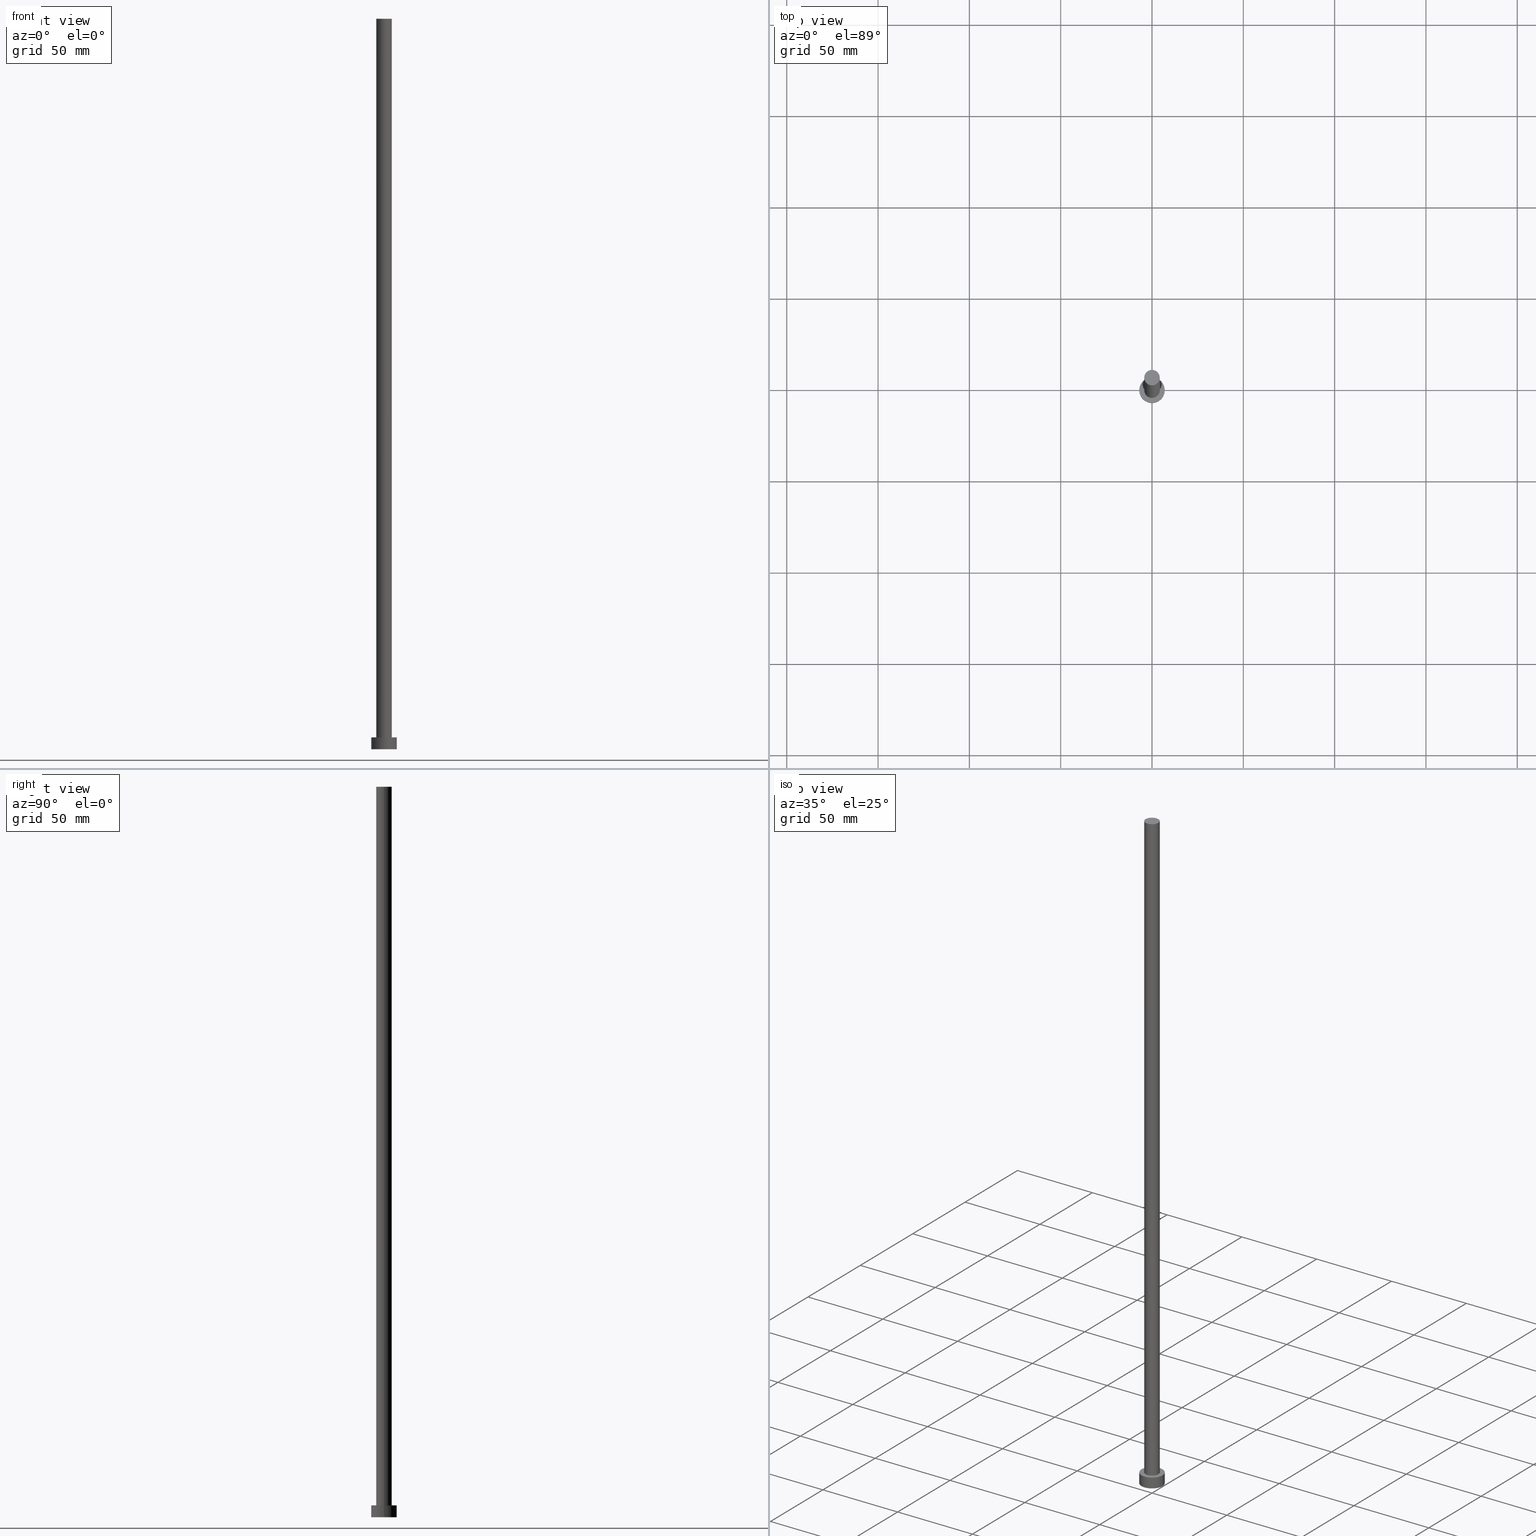
[diagram: canonical four-view strip — front | top / right | iso, engineering-drawing reading convention]
A machine part, canonical four-view strip (front | top / right | iso — engineering-drawing reading convention). The complete STEP part file that produces these views, byte-faithful:
ISO-10303-21;
HEADER;
FILE_DESCRIPTION (( 'STEP AP203' ),
    '1' );
FILE_NAME ('a1f8.STEP',
    '2023-02-13T13:47:49',
    ( '' ),
    ( '' ),
    'SwSTEP 2.0',
    'SolidWorks 2019',
    '' );
FILE_SCHEMA (( 'CONFIG_CONTROL_DESIGN' ));
ENDSEC;

DATA;
#1 = VERTEX_POINT ( 'NONE', #17 ) ;
#2 = ORIENTED_EDGE ( 'NONE', *, *, #110, .F. ) ;
#3 = APPROVAL ( #225, 'NEUR�EN�' ) ;
#4 = FACE_OUTER_BOUND ( 'NONE', #40, .T. ) ;
#5 = ORIENTED_EDGE ( 'NONE', *, *, #32, .F. ) ;
#6 = VERTEX_POINT ( 'NONE', #106 ) ;
#7 = EDGE_CURVE ( 'NONE', #189, #197, #199, .T. ) ;
#8 = CARTESIAN_POINT ( 'NONE',  ( 4.250000000000000000, 5.204748896376250699E-16, 400.0000000000000000 ) ) ;
#9 = CC_DESIGN_APPROVAL ( #57, ( #108 ) ) ;
#10 = PLANE ( 'NONE',  #107 ) ;
#11 = CARTESIAN_POINT ( 'NONE',  ( 0.000000000000000000, 0.000000000000000000, 6.500000000000000000 ) ) ;
#12 = PERSON ( 'NEUR�EN�', 'NEUR�EN�', 'NEUR�EN�', ('NEUR�EN�'), ('NEUR�EN�'), ('NEUR�EN�') ) ;
#13 = EDGE_CURVE ( 'NONE', #197, #189, #78, .T. ) ;
#14 = PRODUCT_DEFINITION_SHAPE ( 'NONE', 'NONE',  #108 ) ;
#15 = ADVANCED_FACE ( 'NONE', ( #119 ), #223, .T. ) ;
#16 = EDGE_CURVE ( 'NONE', #115, #6, #179, .T. ) ;
#17 = CARTESIAN_POINT ( 'NONE',  ( 4.250000000000000000, 5.204748896376250699E-16, 400.0000000000000000 ) ) ;
#18 = MECHANICAL_CONTEXT ( 'NONE', #61, 'mechanical' ) ;
#19 = MANIFOLD_SOLID_BREP ( 'P�idat vysunut�m3', #83 ) ;
#20 = PERSON_AND_ORGANIZATION ( #12, #81 ) ;
#21 = FACE_BOUND ( 'NONE', #143, .T. ) ;
#22 = PERSON_AND_ORGANIZATION_ROLE ( 'creator' ) ;
#23 = EDGE_LOOP ( 'NONE', ( #117, #188 ) ) ;
#24 = APPROVAL_DATE_TIME ( #219, #57 ) ;
#25 = AXIS2_PLACEMENT_3D ( 'NONE', #254, #84, #158 ) ;
#26 = PERSON_AND_ORGANIZATION_ROLE ( 'creator' ) ;
#27 = CALENDAR_DATE ( 2023, 13, 2 ) ;
#28 = CARTESIAN_POINT ( 'NONE',  ( 4.250000000000000000, 5.204748896376250699E-16, 6.500000000000000000 ) ) ;
#29 = LINE ( 'NONE', #8, #232 ) ;
#30 = CALENDAR_DATE ( 2023, 13, 2 ) ;
#31 = AXIS2_PLACEMENT_3D ( 'NONE', #93, #50, #103 ) ;
#32 = EDGE_CURVE ( 'NONE', #240, #236, #211, .T. ) ;
#33 = DATE_AND_TIME ( #252, #97 ) ;
#34 = EDGE_LOOP ( 'NONE', ( #92, #178 ) ) ;
#35 = CARTESIAN_POINT ( 'NONE',  ( 7.000000000000000000, 8.572527594031471218E-16, 6.500000000000000000 ) ) ;
#36 = LOCAL_TIME ( 14, 47, 49.00000000000000000, #221 ) ;
#37 = ORIENTED_EDGE ( 'NONE', *, *, #13, .T. ) ;
#38 = AXIS2_PLACEMENT_3D ( 'NONE', #227, #42, #154 ) ;
#39 = DIRECTION ( 'NONE',  ( 0.000000000000000000, 0.000000000000000000, 1.000000000000000000 ) ) ;
#40 = EDGE_LOOP ( 'NONE', ( #247, #138, #212, #59 ) ) ;
#41 = PRODUCT ( 'a1f8', 'a1f8', '', ( #18 ) ) ;
#42 = DIRECTION ( 'NONE',  ( -0.000000000000000000, -0.000000000000000000, -1.000000000000000000 ) ) ;
#43 = DATE_AND_TIME ( #30, #155 ) ;
#44 = EDGE_CURVE ( 'NONE', #1, #115, #29, .T. ) ;
#45 = ORIENTED_EDGE ( 'NONE', *, *, #13, .F. ) ;
#46 = DIRECTION ( 'NONE',  ( -1.000000000000000000, 0.000000000000000000, 0.000000000000000000 ) ) ;
#47 = DATE_TIME_ROLE ( 'classification_date' ) ;
#48 = DIRECTION ( 'NONE',  ( -0.000000000000000000, -0.000000000000000000, -1.000000000000000000 ) ) ;
#49 = AXIS2_PLACEMENT_3D ( 'NONE', #193, #209, #172 ) ;
#50 = DIRECTION ( 'NONE',  ( -0.000000000000000000, -0.000000000000000000, -1.000000000000000000 ) ) ;
#51 = DIRECTION ( 'NONE',  ( 0.000000000000000000, 0.000000000000000000, 1.000000000000000000 ) ) ;
#52 = DATE_TIME_ROLE ( 'creation_date' ) ;
#53 = DIRECTION ( 'NONE',  ( 0.000000000000000000, 0.000000000000000000, 1.000000000000000000 ) ) ;
#54 = AXIS2_PLACEMENT_3D ( 'NONE', #183, #39, #214 ) ;
#55 = COORDINATED_UNIVERSAL_TIME_OFFSET ( 1, 0, .AHEAD. ) ;
#56 =( GEOMETRIC_REPRESENTATION_CONTEXT ( 3 ) GLOBAL_UNCERTAINTY_ASSIGNED_CONTEXT ( ( #105 ) ) GLOBAL_UNIT_ASSIGNED_CONTEXT ( ( #144, #141, #239 ) ) REPRESENTATION_CONTEXT ( 'NONE', 'WORKASPACE' ) );
#57 = APPROVAL ( #229, 'NEUR�EN�' ) ;
#58 = DESIGN_CONTEXT ( 'detailed design', #75, 'design' ) ;
#59 = ORIENTED_EDGE ( 'NONE', *, *, #131, .T. ) ;
#60 = PERSON_AND_ORGANIZATION_ROLE ( 'design_owner' ) ;
#61 = APPLICATION_CONTEXT ( 'configuration controlled 3d designs of mechanical parts and assemblies' ) ;
#62 = EDGE_LOOP ( 'NONE', ( #88, #164, #167, #68 ) ) ;
#63 = AXIS2_PLACEMENT_3D ( 'NONE', #246, #206, #191 ) ;
#64 = LINE ( 'NONE', #146, #194 ) ;
#65 = DATE_AND_TIME ( #161, #36 ) ;
#66 = COORDINATED_UNIVERSAL_TIME_OFFSET ( 1, 0, .AHEAD. ) ;
#67 = DIRECTION ( 'NONE',  ( -0.000000000000000000, -0.000000000000000000, -1.000000000000000000 ) ) ;
#68 = ORIENTED_EDGE ( 'NONE', *, *, #198, .F. ) ;
#69 = APPROVAL_PERSON_ORGANIZATION ( #129, #177, #80 ) ;
#70 = DIRECTION ( 'NONE',  ( -0.000000000000000000, -0.000000000000000000, -1.000000000000000000 ) ) ;
#71 = CARTESIAN_POINT ( 'NONE',  ( 0.000000000000000000, 0.000000000000000000, 400.0000000000000000 ) ) ;
#72 = FACE_OUTER_BOUND ( 'NONE', #62, .T. ) ;
#73 = DIRECTION ( 'NONE',  ( 1.000000000000000000, 0.000000000000000000, -0.000000000000000000 ) ) ;
#74 = DIRECTION ( 'NONE',  ( -0.000000000000000000, -0.000000000000000000, -1.000000000000000000 ) ) ;
#75 = APPLICATION_CONTEXT ( 'configuration controlled 3d designs of mechanical parts and assemblies' ) ;
#76 = CC_DESIGN_SECURITY_CLASSIFICATION ( #248, ( #114 ) ) ;
#77 = CARTESIAN_POINT ( 'NONE',  ( 7.000000000000000000, 8.572527594031471218E-16, 6.500000000000000000 ) ) ;
#78 = CIRCLE ( 'NONE', #234, 7.000000000000000000 ) ;
#79 = APPROVAL_DATE_TIME ( #33, #177 ) ;
#80 = APPROVAL_ROLE ( '' ) ;
#81 = ORGANIZATION ( 'NEUR�EN�', 'NEUR�EN�', '' ) ;
#82 = AXIS2_PLACEMENT_3D ( 'NONE', #11, #173, #46 ) ;
#83 = CLOSED_SHELL ( 'NONE', ( #142, #15, #147, #196, #87, #216, #99 ) ) ;
#84 = DIRECTION ( 'NONE',  ( 0.000000000000000000, 0.000000000000000000, 1.000000000000000000 ) ) ;
#85 = CC_DESIGN_PERSON_AND_ORGANIZATION_ASSIGNMENT ( #165, #113, ( #248 ) ) ;
#86 = DIRECTION ( 'NONE',  ( 1.000000000000000000, 0.000000000000000000, 0.000000000000000000 ) ) ;
#87 = ADVANCED_FACE ( 'NONE', ( #134 ), #121, .F. ) ;
#88 = ORIENTED_EDGE ( 'NONE', *, *, #237, .F. ) ;
#89 = PRODUCT_RELATED_PRODUCT_CATEGORY ( 'detail', '', ( #41 ) ) ;
#90 = CARTESIAN_POINT ( 'NONE',  ( 0.000000000000000000, 0.000000000000000000, 6.500000000000000000 ) ) ;
#91 = CALENDAR_DATE ( 2023, 13, 2 ) ;
#92 = ORIENTED_EDGE ( 'NONE', *, *, #32, .T. ) ;
#93 = CARTESIAN_POINT ( 'NONE',  ( 0.000000000000000000, 0.000000000000000000, 400.0000000000000000 ) ) ;
#94 = PERSON_AND_ORGANIZATION ( #12, #81 ) ;
#95 = ORIENTED_EDGE ( 'NONE', *, *, #156, .F. ) ;
#96 = DIRECTION ( 'NONE',  ( 1.000000000000000000, 0.000000000000000000, 0.000000000000000000 ) ) ;
#97 = LOCAL_TIME ( 14, 47, 49.00000000000000000, #195 ) ;
#98 = APPROVAL_ROLE ( '' ) ;
#99 = ADVANCED_FACE ( 'NONE', ( #249 ), #10, .T. ) ;
#100 = CARTESIAN_POINT ( 'NONE',  ( 0.000000000000000000, 0.000000000000000000, 6.500000000000000000 ) ) ;
#101 = CARTESIAN_POINT ( 'NONE',  ( -7.000000000000000000, 0.000000000000000000, 6.500000000000000000 ) ) ;
#102 = SECURITY_CLASSIFICATION_LEVEL ( 'unclassified' ) ;
#103 = DIRECTION ( 'NONE',  ( -1.000000000000000000, 0.000000000000000000, 0.000000000000000000 ) ) ;
#104 = CC_DESIGN_PERSON_AND_ORGANIZATION_ASSIGNMENT ( #20, #60, ( #41 ) ) ;
#105 = UNCERTAINTY_MEASURE_WITH_UNIT (LENGTH_MEASURE( 1.000000000000000082E-05 ), #144, 'distance_accuracy_value', 'NONE');
#106 = CARTESIAN_POINT ( 'NONE',  ( -4.250000000000000000, 0.000000000000000000, 6.500000000000000000 ) ) ;
#107 = AXIS2_PLACEMENT_3D ( 'NONE', #166, #53, #73 ) ;
#108 = PRODUCT_DEFINITION ( 'NEZN�M�', '', #114, #58 ) ;
#109 = ORIENTED_EDGE ( 'NONE', *, *, #255, .T. ) ;
#110 = EDGE_CURVE ( 'NONE', #236, #240, #238, .T. ) ;
#111 = CC_DESIGN_APPROVAL ( #177, ( #248 ) ) ;
#112 = AXIS2_PLACEMENT_3D ( 'NONE', #100, #67, #204 ) ;
#113 = PERSON_AND_ORGANIZATION_ROLE ( 'classification_officer' ) ;
#114 = PRODUCT_DEFINITION_FORMATION_WITH_SPECIFIED_SOURCE ( 'LIBOVOLN�', '', #41, .NOT_KNOWN. ) ;
#115 = VERTEX_POINT ( 'NONE', #28 ) ;
#116 = ORIENTED_EDGE ( 'NONE', *, *, #7, .F. ) ;
#117 = ORIENTED_EDGE ( 'NONE', *, *, #120, .T. ) ;
#118 = COORDINATED_UNIVERSAL_TIME_OFFSET ( 1, 0, .AHEAD. ) ;
#119 = FACE_OUTER_BOUND ( 'NONE', #185, .T. ) ;
#120 = EDGE_CURVE ( 'NONE', #224, #1, #242, .T. ) ;
#121 = PLANE ( 'NONE',  #49 ) ;
#122 = LINE ( 'NONE', #101, #145 ) ;
#123 = ORIENTED_EDGE ( 'NONE', *, *, #7, .T. ) ;
#124 = DIRECTION ( 'NONE',  ( -0.000000000000000000, -0.000000000000000000, -1.000000000000000000 ) ) ;
#125 = APPLICATION_PROTOCOL_DEFINITION ( 'international standard', 'config_control_design', 1994, #75 ) ;
#126 = CYLINDRICAL_SURFACE ( 'NONE', #82, 7.000000000000000000 ) ;
#127 = CC_DESIGN_APPROVAL ( #3, ( #114 ) ) ;
#128 = CARTESIAN_POINT ( 'NONE',  ( 7.000000000000000000, 8.572527594031471218E-16, 0.000000000000000000 ) ) ;
#129 = PERSON_AND_ORGANIZATION ( #12, #81 ) ;
#130 = DIRECTION ( 'NONE',  ( 1.000000000000000000, 0.000000000000000000, 0.000000000000000000 ) ) ;
#131 = EDGE_CURVE ( 'NONE', #6, #115, #215, .T. ) ;
#132 = DIRECTION ( 'NONE',  ( 1.000000000000000000, 0.000000000000000000, 0.000000000000000000 ) ) ;
#133 = ADVANCED_BREP_SHAPE_REPRESENTATION ( 'a1f8', ( #19, #54 ), #56 ) ;
#134 = FACE_OUTER_BOUND ( 'NONE', #235, .T. ) ;
#135 = CC_DESIGN_PERSON_AND_ORGANIZATION_ASSIGNMENT ( #94, #22, ( #114 ) ) ;
#136 = AXIS2_PLACEMENT_3D ( 'NONE', #71, #153, #226 ) ;
#137 = SHAPE_DEFINITION_REPRESENTATION ( #14, #133 ) ;
#138 = ORIENTED_EDGE ( 'NONE', *, *, #120, .F. ) ;
#139 = CARTESIAN_POINT ( 'NONE',  ( 0.000000000000000000, 0.000000000000000000, 0.000000000000000000 ) ) ;
#140 = LINE ( 'NONE', #35, #243 ) ;
#141 =( NAMED_UNIT ( * ) PLANE_ANGLE_UNIT ( ) SI_UNIT ( $, .RADIAN. ) );
#142 = ADVANCED_FACE ( 'NONE', ( #72 ), #148, .T. ) ;
#143 = EDGE_LOOP ( 'NONE', ( #217, #245 ) ) ;
#144 =( LENGTH_UNIT ( ) NAMED_UNIT ( * ) SI_UNIT ( .MILLI., .METRE. ) );
#145 = VECTOR ( 'NONE', #74, 1000.000000000000000 ) ;
#146 = CARTESIAN_POINT ( 'NONE',  ( -4.250000000000000000, 0.000000000000000000, 400.0000000000000000 ) ) ;
#147 = ADVANCED_FACE ( 'NONE', ( #207 ), #126, .T. ) ;
#148 = CYLINDRICAL_SURFACE ( 'NONE', #38, 4.250000000000000000 ) ;
#149 = PERSON_AND_ORGANIZATION_ROLE ( 'design_supplier' ) ;
#150 = CARTESIAN_POINT ( 'NONE',  ( 0.000000000000000000, 0.000000000000000000, 6.500000000000000000 ) ) ;
#151 = CYLINDRICAL_SURFACE ( 'NONE', #31, 4.250000000000000000 ) ;
#152 = PERSON_AND_ORGANIZATION ( #12, #81 ) ;
#153 = DIRECTION ( 'NONE',  ( 0.000000000000000000, 0.000000000000000000, 1.000000000000000000 ) ) ;
#154 = DIRECTION ( 'NONE',  ( -1.000000000000000000, 0.000000000000000000, 0.000000000000000000 ) ) ;
#155 = LOCAL_TIME ( 14, 47, 49.00000000000000000, #55 ) ;
#156 = EDGE_CURVE ( 'NONE', #240, #189, #122, .T. ) ;
#157 = APPROVAL_PERSON_ORGANIZATION ( #192, #3, #98 ) ;
#158 = DIRECTION ( 'NONE',  ( 1.000000000000000000, 0.000000000000000000, 0.000000000000000000 ) ) ;
#159 = APPLICATION_PROTOCOL_DEFINITION ( 'international standard', 'config_control_design', 1994, #61 ) ;
#160 = CARTESIAN_POINT ( 'NONE',  ( 0.000000000000000000, 0.000000000000000000, 6.500000000000000000 ) ) ;
#161 = CALENDAR_DATE ( 2023, 13, 2 ) ;
#162 = AXIS2_PLACEMENT_3D ( 'NONE', #90, #190, #168 ) ;
#163 = CIRCLE ( 'NONE', #253, 4.250000000000000000 ) ;
#164 = ORIENTED_EDGE ( 'NONE', *, *, #44, .T. ) ;
#165 = PERSON_AND_ORGANIZATION ( #12, #81 ) ;
#166 = CARTESIAN_POINT ( 'NONE',  ( 0.000000000000000000, 0.000000000000000000, 400.0000000000000000 ) ) ;
#167 = ORIENTED_EDGE ( 'NONE', *, *, #16, .T. ) ;
#168 = DIRECTION ( 'NONE',  ( 1.000000000000000000, 0.000000000000000000, 0.000000000000000000 ) ) ;
#169 = LOCAL_TIME ( 14, 47, 49.00000000000000000, #118 ) ;
#170 = CARTESIAN_POINT ( 'NONE',  ( 0.000000000000000000, 0.000000000000000000, 6.500000000000000000 ) ) ;
#171 = APPROVAL_DATE_TIME ( #187, #3 ) ;
#172 = DIRECTION ( 'NONE',  ( 1.000000000000000000, 0.000000000000000000, -0.000000000000000000 ) ) ;
#173 = DIRECTION ( 'NONE',  ( -0.000000000000000000, -0.000000000000000000, -1.000000000000000000 ) ) ;
#174 = CARTESIAN_POINT ( 'NONE',  ( -4.250000000000000000, 0.000000000000000000, 400.0000000000000000 ) ) ;
#175 = CC_DESIGN_PERSON_AND_ORGANIZATION_ASSIGNMENT ( #228, #149, ( #114 ) ) ;
#176 = CARTESIAN_POINT ( 'NONE',  ( 0.000000000000000000, 0.000000000000000000, 400.0000000000000000 ) ) ;
#177 = APPROVAL ( #202, 'NEUR�EN�' ) ;
#178 = ORIENTED_EDGE ( 'NONE', *, *, #110, .T. ) ;
#179 = CIRCLE ( 'NONE', #63, 4.250000000000000000 ) ;
#180 = CARTESIAN_POINT ( 'NONE',  ( -7.000000000000000000, 0.000000000000000000, 6.500000000000000000 ) ) ;
#181 = ORIENTED_EDGE ( 'NONE', *, *, #156, .T. ) ;
#182 = DIRECTION ( 'NONE',  ( 0.000000000000000000, 0.000000000000000000, 1.000000000000000000 ) ) ;
#183 = CARTESIAN_POINT ( 'NONE',  ( 0.000000000000000000, 0.000000000000000000, 0.000000000000000000 ) ) ;
#184 = PLANE ( 'NONE',  #233 ) ;
#185 = EDGE_LOOP ( 'NONE', ( #2, #109, #37, #95 ) ) ;
#186 = DIRECTION ( 'NONE',  ( 0.000000000000000000, 0.000000000000000000, 1.000000000000000000 ) ) ;
#187 = DATE_AND_TIME ( #91, #169 ) ;
#188 = ORIENTED_EDGE ( 'NONE', *, *, #237, .T. ) ;
#189 = VERTEX_POINT ( 'NONE', #231 ) ;
#190 = DIRECTION ( 'NONE',  ( 0.000000000000000000, 0.000000000000000000, 1.000000000000000000 ) ) ;
#191 = DIRECTION ( 'NONE',  ( 1.000000000000000000, 0.000000000000000000, 0.000000000000000000 ) ) ;
#192 = PERSON_AND_ORGANIZATION ( #12, #81 ) ;
#193 = CARTESIAN_POINT ( 'NONE',  ( 0.000000000000000000, 0.000000000000000000, 0.000000000000000000 ) ) ;
#194 = VECTOR ( 'NONE', #70, 1000.000000000000000 ) ;
#195 = COORDINATED_UNIVERSAL_TIME_OFFSET ( 1, 0, .AHEAD. ) ;
#196 = ADVANCED_FACE ( 'NONE', ( #21, #200 ), #184, .T. ) ;
#197 = VERTEX_POINT ( 'NONE', #128 ) ;
#198 = EDGE_CURVE ( 'NONE', #224, #6, #64, .T. ) ;
#199 = CIRCLE ( 'NONE', #25, 7.000000000000000000 ) ;
#200 = FACE_OUTER_BOUND ( 'NONE', #34, .T. ) ;
#201 = EDGE_LOOP ( 'NONE', ( #220, #5, #181, #123 ) ) ;
#202 = APPROVAL_STATUS ( 'not_yet_approved' ) ;
#203 = AXIS2_PLACEMENT_3D ( 'NONE', #150, #251, #96 ) ;
#204 = DIRECTION ( 'NONE',  ( -1.000000000000000000, 0.000000000000000000, 0.000000000000000000 ) ) ;
#205 = CC_DESIGN_PERSON_AND_ORGANIZATION_ASSIGNMENT ( #152, #26, ( #108 ) ) ;
#206 = DIRECTION ( 'NONE',  ( 0.000000000000000000, 0.000000000000000000, 1.000000000000000000 ) ) ;
#207 = FACE_OUTER_BOUND ( 'NONE', #201, .T. ) ;
#208 = APPROVAL_ROLE ( '' ) ;
#209 = DIRECTION ( 'NONE',  ( 0.000000000000000000, 0.000000000000000000, 1.000000000000000000 ) ) ;
#210 = AXIS2_PLACEMENT_3D ( 'NONE', #170, #230, #130 ) ;
#211 = CIRCLE ( 'NONE', #203, 7.000000000000000000 ) ;
#212 = ORIENTED_EDGE ( 'NONE', *, *, #198, .T. ) ;
#213 = APPROVAL_PERSON_ORGANIZATION ( #250, #57, #208 ) ;
#214 = DIRECTION ( 'NONE',  ( 1.000000000000000000, 0.000000000000000000, 0.000000000000000000 ) ) ;
#215 = CIRCLE ( 'NONE', #162, 4.250000000000000000 ) ;
#216 = ADVANCED_FACE ( 'NONE', ( #4 ), #151, .T. ) ;
#217 = ORIENTED_EDGE ( 'NONE', *, *, #131, .F. ) ;
#218 = CC_DESIGN_DATE_AND_TIME_ASSIGNMENT ( #65, #47, ( #248 ) ) ;
#219 = DATE_AND_TIME ( #27, #241 ) ;
#220 = ORIENTED_EDGE ( 'NONE', *, *, #255, .F. ) ;
#221 = COORDINATED_UNIVERSAL_TIME_OFFSET ( 1, 0, .AHEAD. ) ;
#222 = CC_DESIGN_DATE_AND_TIME_ASSIGNMENT ( #43, #52, ( #108 ) ) ;
#223 = CYLINDRICAL_SURFACE ( 'NONE', #112, 7.000000000000000000 ) ;
#224 = VERTEX_POINT ( 'NONE', #174 ) ;
#225 = APPROVAL_STATUS ( 'not_yet_approved' ) ;
#226 = DIRECTION ( 'NONE',  ( 1.000000000000000000, 0.000000000000000000, 0.000000000000000000 ) ) ;
#227 = CARTESIAN_POINT ( 'NONE',  ( 0.000000000000000000, 0.000000000000000000, 400.0000000000000000 ) ) ;
#228 = PERSON_AND_ORGANIZATION ( #12, #81 ) ;
#229 = APPROVAL_STATUS ( 'not_yet_approved' ) ;
#230 = DIRECTION ( 'NONE',  ( 0.000000000000000000, 0.000000000000000000, 1.000000000000000000 ) ) ;
#231 = CARTESIAN_POINT ( 'NONE',  ( -7.000000000000000000, 0.000000000000000000, 0.000000000000000000 ) ) ;
#232 = VECTOR ( 'NONE', #48, 1000.000000000000000 ) ;
#233 = AXIS2_PLACEMENT_3D ( 'NONE', #160, #186, #244 ) ;
#234 = AXIS2_PLACEMENT_3D ( 'NONE', #139, #51, #132 ) ;
#235 = EDGE_LOOP ( 'NONE', ( #116, #45 ) ) ;
#236 = VERTEX_POINT ( 'NONE', #77 ) ;
#237 = EDGE_CURVE ( 'NONE', #1, #224, #163, .T. ) ;
#238 = CIRCLE ( 'NONE', #210, 7.000000000000000000 ) ;
#239 =( NAMED_UNIT ( * ) SI_UNIT ( $, .STERADIAN. ) SOLID_ANGLE_UNIT ( ) );
#240 = VERTEX_POINT ( 'NONE', #180 ) ;
#241 = LOCAL_TIME ( 14, 47, 49.00000000000000000, #66 ) ;
#242 = CIRCLE ( 'NONE', #136, 4.250000000000000000 ) ;
#243 = VECTOR ( 'NONE', #124, 1000.000000000000000 ) ;
#244 = DIRECTION ( 'NONE',  ( 1.000000000000000000, 0.000000000000000000, -0.000000000000000000 ) ) ;
#245 = ORIENTED_EDGE ( 'NONE', *, *, #16, .F. ) ;
#246 = CARTESIAN_POINT ( 'NONE',  ( 0.000000000000000000, 0.000000000000000000, 6.500000000000000000 ) ) ;
#247 = ORIENTED_EDGE ( 'NONE', *, *, #44, .F. ) ;
#248 = SECURITY_CLASSIFICATION ( '', '', #102 ) ;
#249 = FACE_OUTER_BOUND ( 'NONE', #23, .T. ) ;
#250 = PERSON_AND_ORGANIZATION ( #12, #81 ) ;
#251 = DIRECTION ( 'NONE',  ( 0.000000000000000000, 0.000000000000000000, 1.000000000000000000 ) ) ;
#252 = CALENDAR_DATE ( 2023, 13, 2 ) ;
#253 = AXIS2_PLACEMENT_3D ( 'NONE', #176, #182, #86 ) ;
#254 = CARTESIAN_POINT ( 'NONE',  ( 0.000000000000000000, 0.000000000000000000, 0.000000000000000000 ) ) ;
#255 = EDGE_CURVE ( 'NONE', #236, #197, #140, .T. ) ;
ENDSEC;
END-ISO-10303-21;
